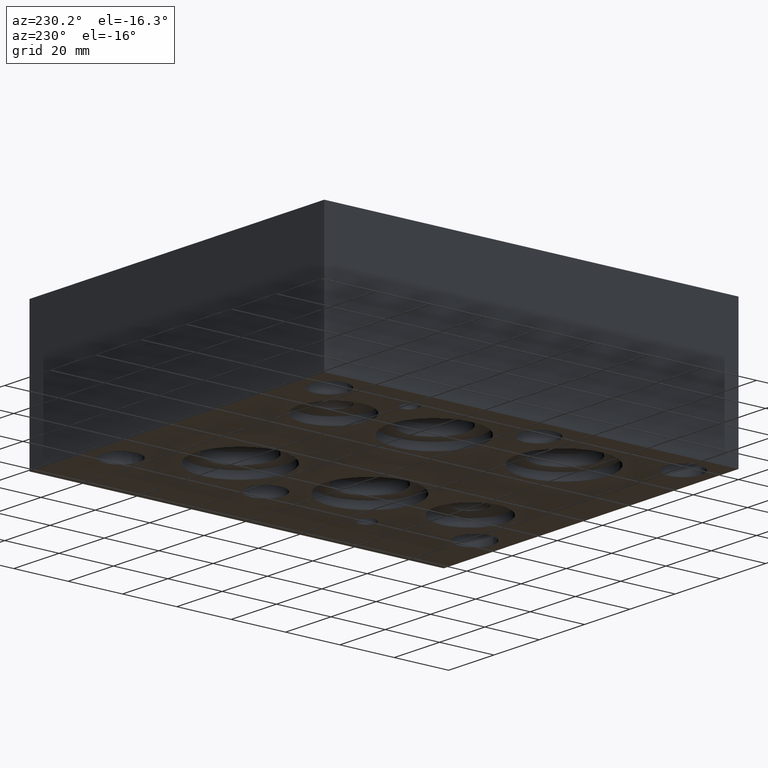
[diagram: clean part render]
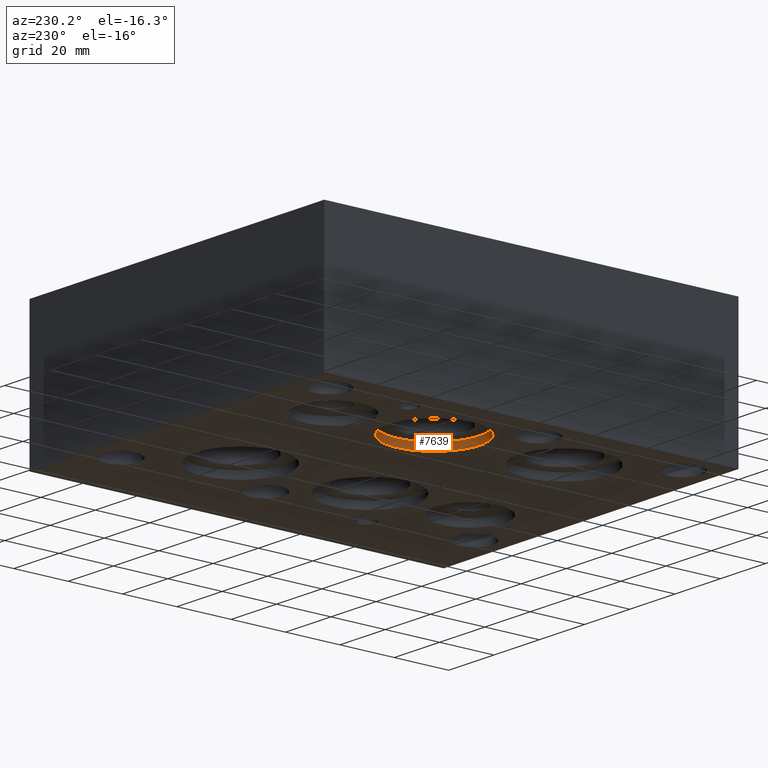
[diagram: same view with one face highlighted and labeled with its STEP entity id]
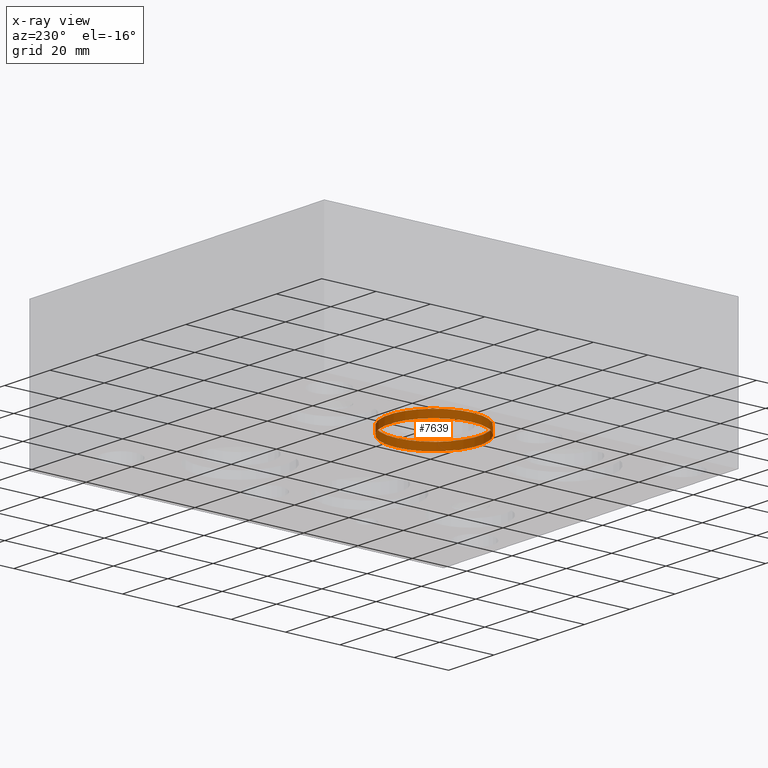
[diagram: x-ray of the same camera — body ghosted, the highlighted face saturated]
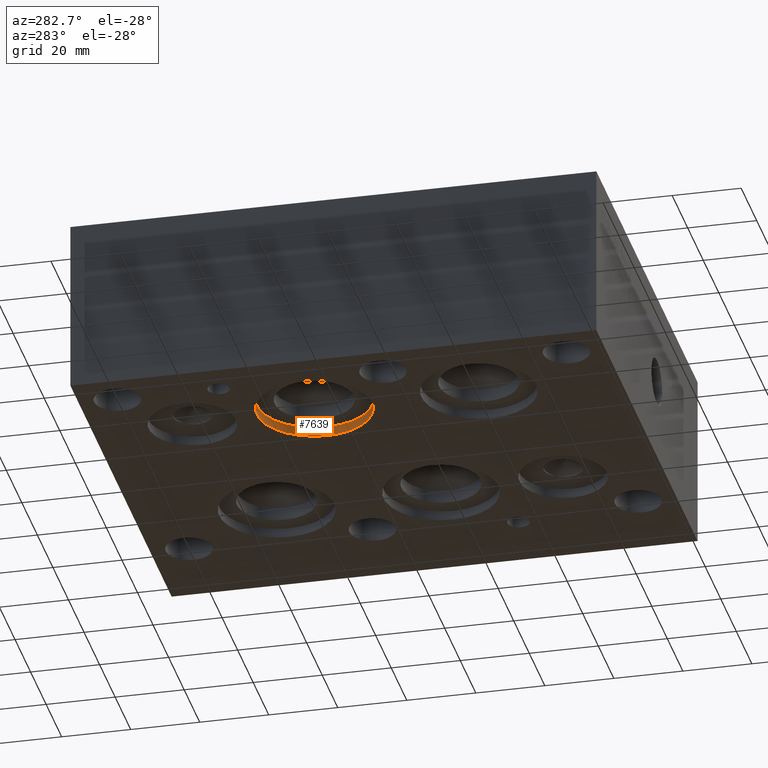
[diagram: same view with one face highlighted and labeled with its STEP entity id]
A machine part, auxiliary view. The second image highlights one B-rep face of the part: STEP entity #7639.
The next image is the same camera in x-ray: the body ghosted, the highlighted face saturated — about 0% of this face is hidden behind the body in this view.
A second angle (auxiliary view) of the same face is appended — the face is thin or edge-on in the first view.
In plain terms, the highlighted cylindrical surface (bore or boss wall) has radius 16.6751 mm, axis along (0, 0, -1).
Its self-contained STEP definition (entity closure, byte-faithful):
#22=CYLINDRICAL_SURFACE('',#7996,16.6751);
#100=CIRCLE('',#7997,16.6751);
#101=CIRCLE('',#7998,16.6751);
#852=FACE_OUTER_BOUND('',#1295,.T.);
#1295=EDGE_LOOP('',(#6434,#6435,#6436,#6437));
#2114=LINE('',#12672,#2877);
#2877=VECTOR('',#9383,16.6751);
#3535=VERTEX_POINT('',#12669);
#3536=VERTEX_POINT('',#12671);
#4524=EDGE_CURVE('',#3535,#3535,#100,.T.);
#4525=EDGE_CURVE('',#3535,#3536,#2114,.T.);
#4526=EDGE_CURVE('',#3536,#3536,#101,.T.);
#6434=ORIENTED_EDGE('',*,*,#4524,.F.);
#6435=ORIENTED_EDGE('',*,*,#4525,.T.);
#6436=ORIENTED_EDGE('',*,*,#4526,.F.);
#6437=ORIENTED_EDGE('',*,*,#4525,.F.);
#7639=ADVANCED_FACE('',(#852),#22,.F.);
#7996=AXIS2_PLACEMENT_3D('',#12668,#9379,#9380);
#7997=AXIS2_PLACEMENT_3D('',#12670,#9381,#9382);
#7998=AXIS2_PLACEMENT_3D('',#12673,#9384,#9385);
#9379=DIRECTION('center_axis',(0.,0.,-1.));
#9380=DIRECTION('ref_axis',(1.,0.,0.));
#9381=DIRECTION('center_axis',(0.,0.,1.));
#9382=DIRECTION('ref_axis',(1.,0.,0.));
#9383=DIRECTION('',(0.,0.,1.));
#9384=DIRECTION('center_axis',(0.,0.,-1.));
#9385=DIRECTION('ref_axis',(1.,0.,0.));
#12668=CARTESIAN_POINT('Origin',(28.575,88.138,1.397));
#12669=CARTESIAN_POINT('',(11.8999,88.138,0.));
#12670=CARTESIAN_POINT('Origin',(28.575,88.138,0.));
#12671=CARTESIAN_POINT('',(11.8999,88.138,2.794));
#12672=CARTESIAN_POINT('',(11.8999,88.138,1.397));
#12673=CARTESIAN_POINT('Origin',(28.575,88.138,2.794));